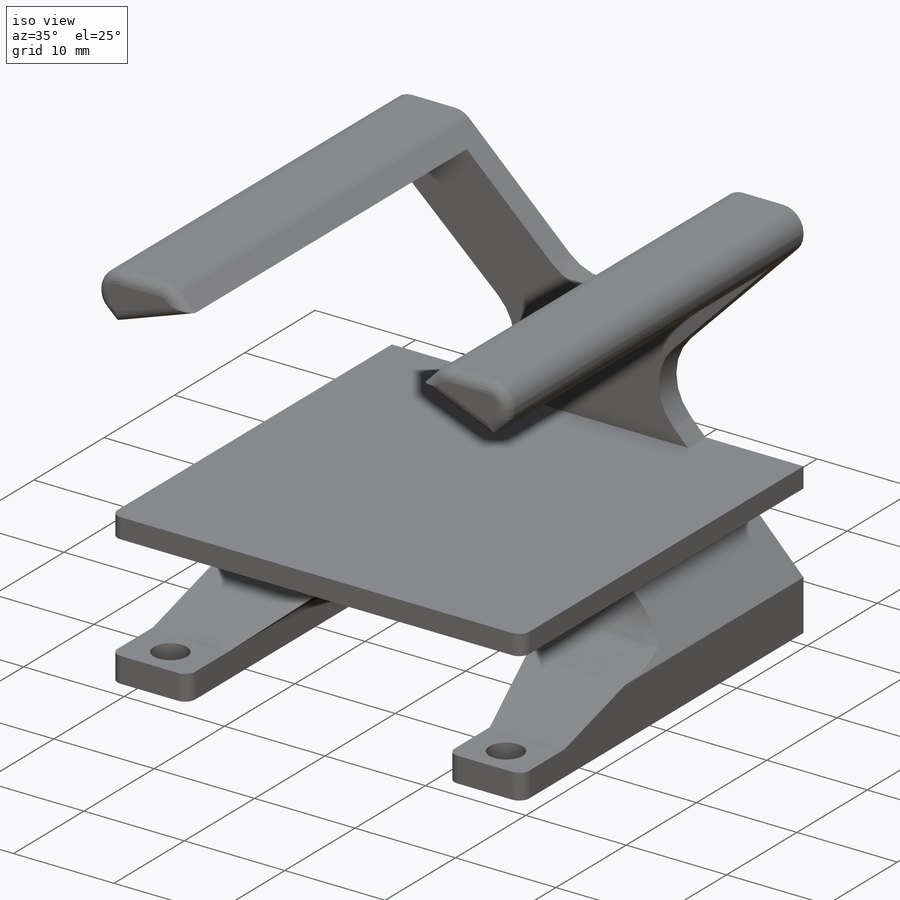
[diagram: iso view]
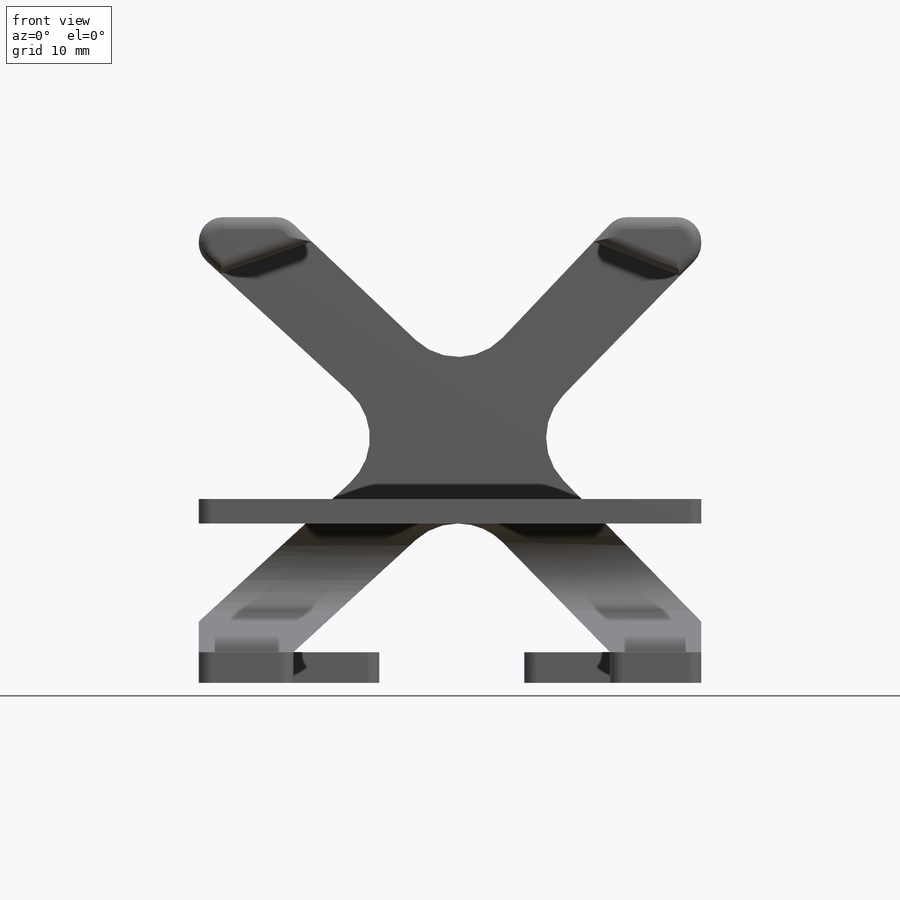
[diagram: front view]
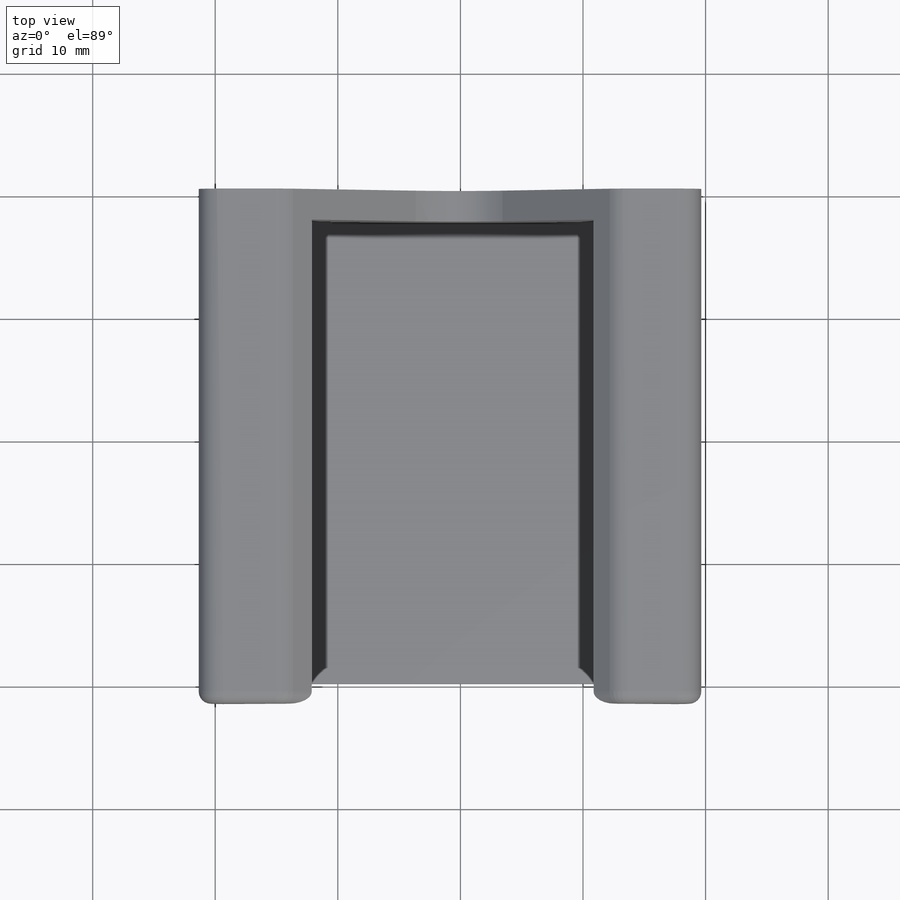
[diagram: top view]
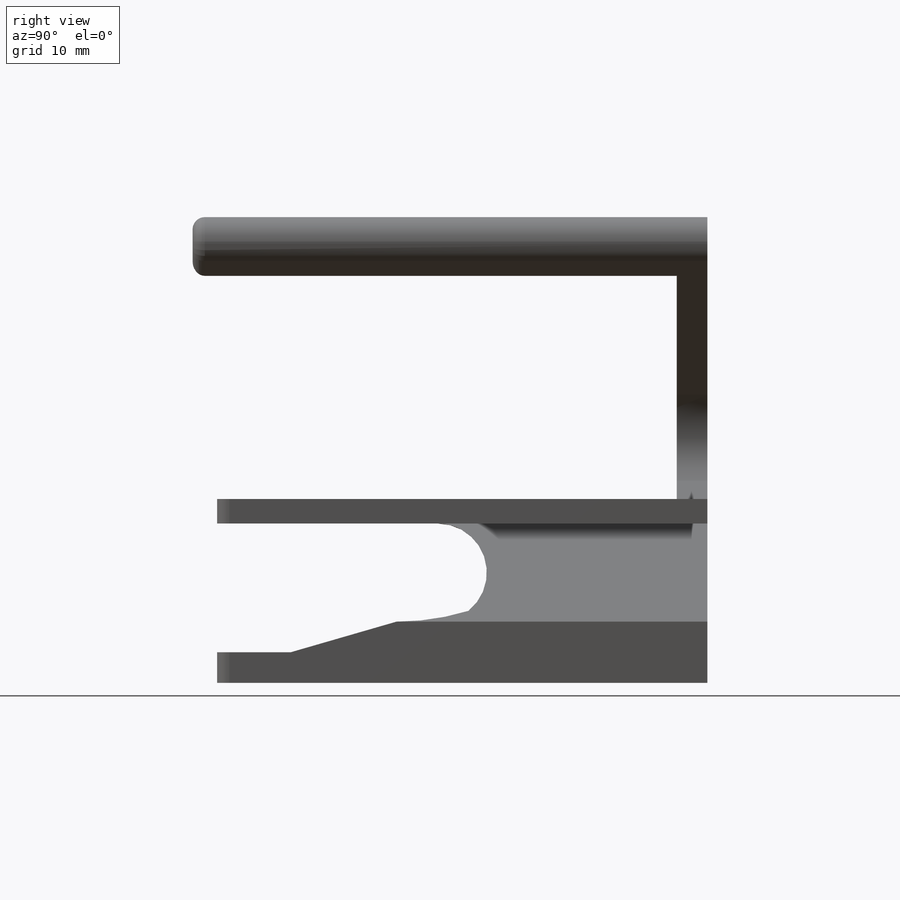
[diagram: right view]
SOLIDWORKS PART (.sldprt)
format: sldprt  version: not decoded by parser v0  size: 599,040 bytes
history: native  units: mm
features: sketch x10, fillet x8, cut_extrude x6, extrude x4, material x1, chamfer x1 + 1 further entry (+12 scaffold rows collapsed)
feature tree (43):
  scaffold x12  (default folders/planes/origin — collapsed)
  material  "Material <not specified>"
  "Annotations"  RD1=40mm
  sketch  "Sketch2"  dims[c1.D1=1016.0mm c1.D2=1143.0mm c1.D3=50.8mm c1.D4=127.0mm c1.D5=127.0mm c1.D6=127.0mm c1.D7=127.0mm c1.D8=127.0mm c1.D9=63.5mm c2.D1=40.0mm c2.D2=41.0mm c2.D3=2.0mm c2.D4=15.0mm c2.D5=5.0mm c2.D6=5.0mm c2.D7=0.0mm c2.D8=5.0mm c2.D9=5.0mm c2.D10=5.0mm c2.D11=0.0mm c2.D12=5.0mm c2.D13=5.0mm c2.D14=5.0mm c2.D15=5.0mm c2.D16=5.0mm c2.D17=0.0mm c2.D18=5.0mm]
  extrude  "Boss-Extrude1"  Depth=40mm
  sketch  "Sketch3"  dims[D1=21.0mm D2=37.5mm D3=1.75mm D4=2.0mm]
  cut_extrude  "Cut-Extrude1"  Depth=37.5mm
  sketch  "Sketch4"
  cut_extrude  "Cut-Extrude2"  Depth=37.5mm
  sketch  "Sketch5"
  extrude  "Boss-Extrude2"  Depth=2mm
  sketch  "Sketch6"  dims[D1=30.0mm]
  cut_extrude  "Cut-Extrude3"  Depth=100mm
  chamfer  "Chamfer1"  Distance=10mm Angle=30deg
  fillet  "Fillet2"  Radius=20mm
  fillet  "Fillet3"  Radius=4mm
  fillet  "Fillet4"  Radius=5mm
  sketch  "Sketch7"  dims[D1=6.0mm]
  cut_extrude  "Cut-Extrude4"  Depth=100mm
  sketch  "Sketch8"
  extrude  "Boss-Extrude3"  [1 undecoded]
  sketch  "Sketch9"  dims[D1=3.0mm D2=3.0mm]
  cut_extrude  "Cut-Extrude5"  Depth=100mm
  sketch  "Sketch10"  dims[D1=7.0mm D2=7.0mm]
  extrude  "Boss-Extrude4"  Depth=5mm
  sketch  "Sketch11"  dims[c1.D1=1.656mm c1.D2=~0.964894mm c2.D1=3.0mm c2.D2=3.0mm]
  cut_extrude  "Cut-Extrude6"  Depth=5mm
  fillet  "Fillet5"  Radius=1mm
  fillet  "Fillet6"  Radius=1mm
  fillet  "Fillet7"  Radius=2mm
  fillet  "Fillet8"  Radius=1mm
  fillet  "Fillet9"  Radius=1mm
decode coverage: 25 of 29 modeling features carry decoded parameters; 1 rows unclassified (native names shown)
note: ~ marks probable driven/reference dimensions
note: 1 parameter value undecoded
note: suppression state not decoded; provenance and decode notes live in map.json
